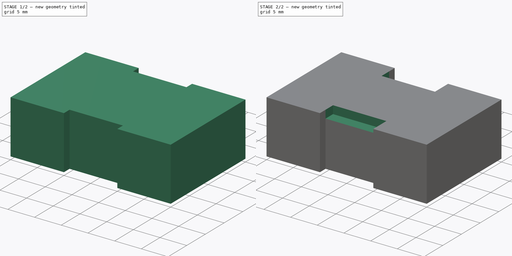
[diagram: build sequence overview — one tinted view per stage of 2, left to right]
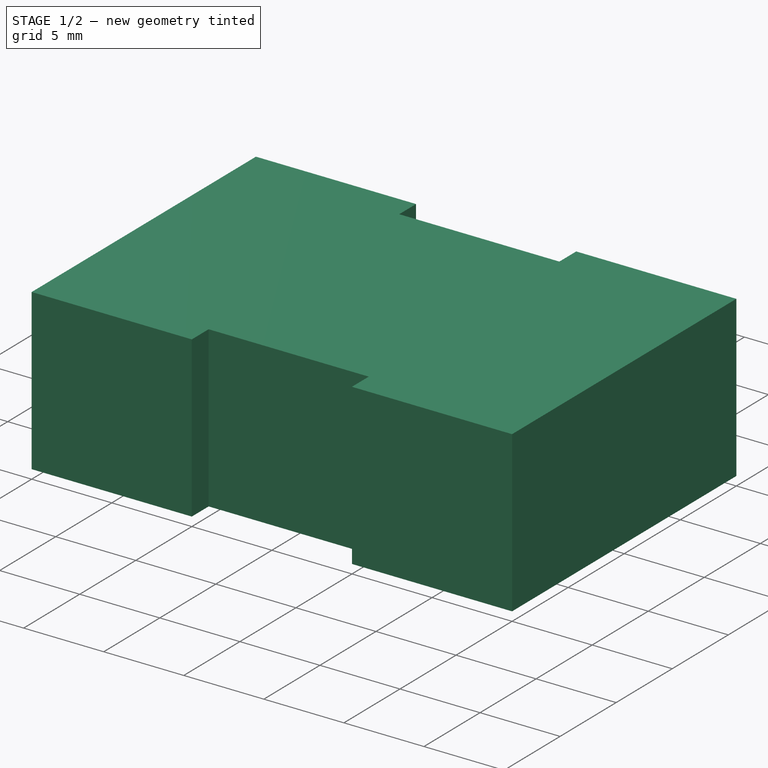
[diagram: stage 1 of 2 — iso view after this stage's code; geometry added in this stage tinted green]
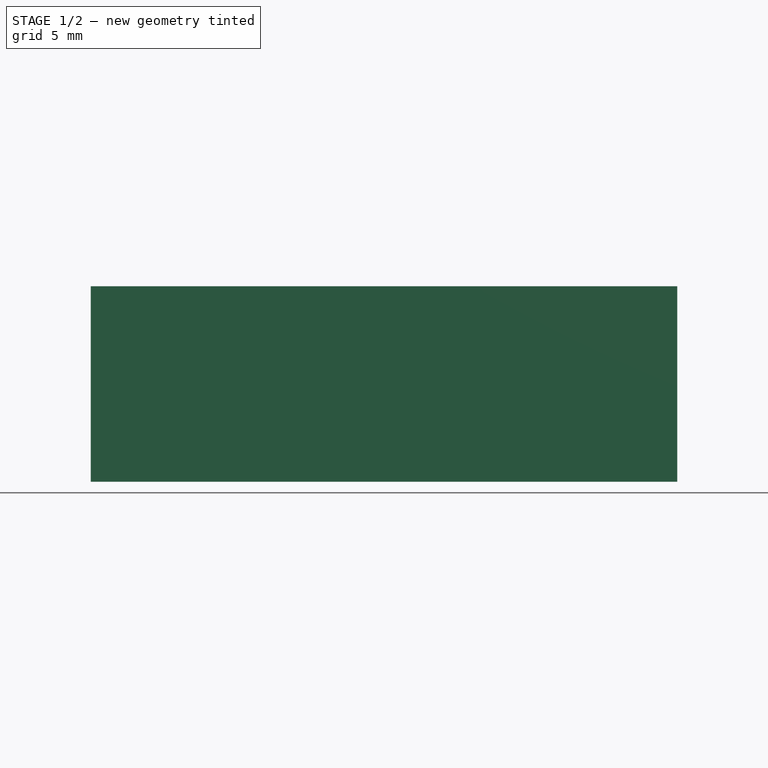
[diagram: stage 1 of 2 — front view after this stage's code; geometry added in this stage tinted green]
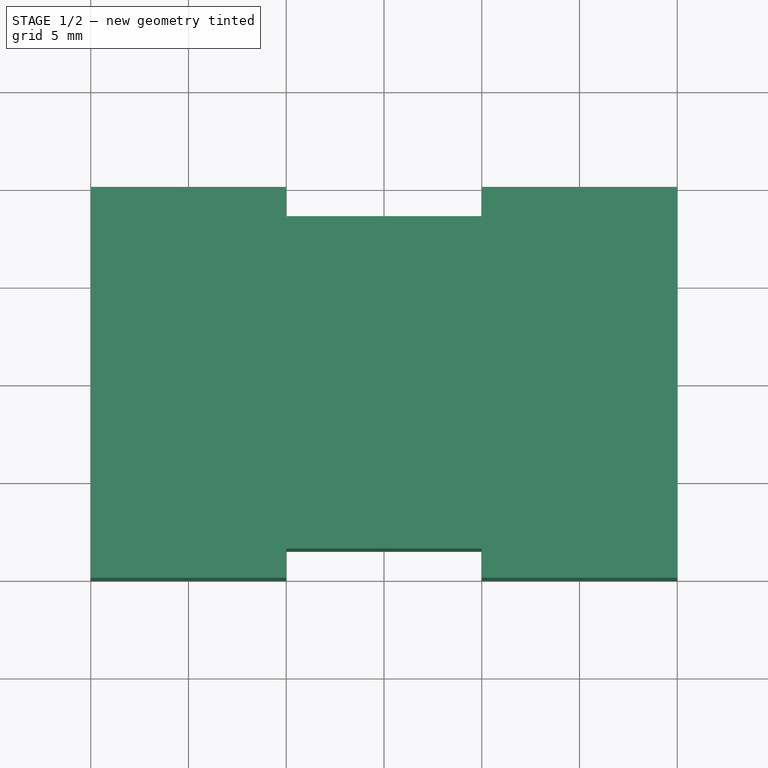
[diagram: stage 1 of 2 — top view after this stage's code; geometry added in this stage tinted green]
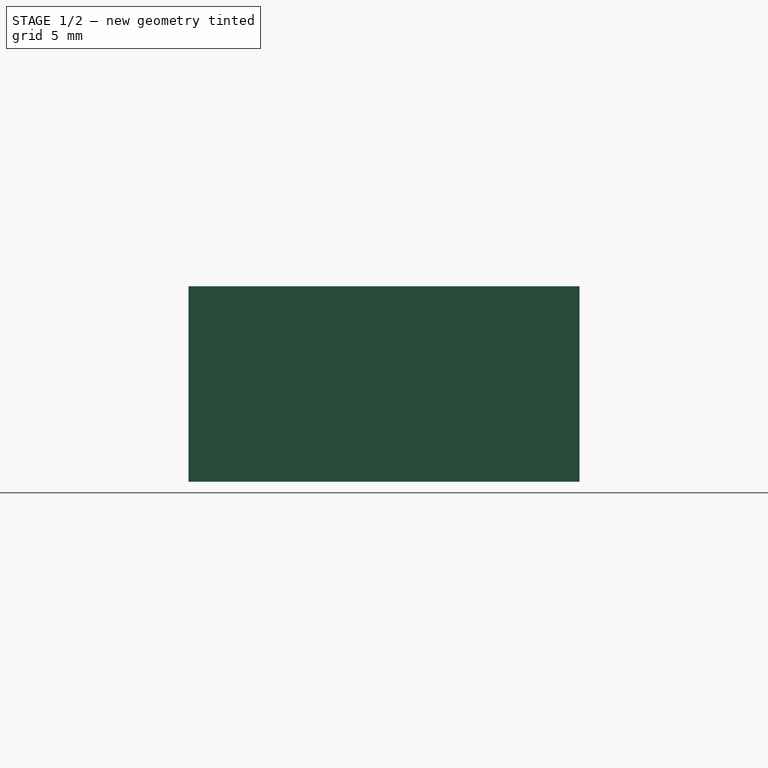
[diagram: stage 1 of 2 — right view after this stage's code; geometry added in this stage tinted green]
FCSTD DOCUMENT  (FreeCAD 0.21R33675 (Git))
Label: box
License: All rights reserved
LicenseURL: http://en.wikipedia.org/wiki/All_rights_reserved
objects: Sketcher::SketchObject×3, PartDesign::Pocket×2, PartDesign::Pad×1, PartDesign::Body×1
note: 10 computed .brp shape members not serialized (recipe doc carries the construction recipe); baked Part::Feature solids carry a one-line shape summary decoded from their .brp

FEATURE [Sketcher::SketchObject] Sketch  label="bottom-sk"
  FullyConstrained = true
  MapMode = 5
  Support = -> [XY_Plane]
  sketch-geometry (14):
    g0: LineSegment StartX=15 StartY=10 StartZ=0 EndX=15 EndY=-10 EndZ=0
    g1: LineSegment StartX=-15 StartY=-10 StartZ=0 EndX=-15 EndY=10 EndZ=0
    g2: GeomPoint X=-15 Y=0 Z=0
    g3: GeomPoint X=0 Y=10 Z=0
    g4: LineSegment StartX=-15 StartY=10 StartZ=0 EndX=-5 EndY=10 EndZ=0
    g5: LineSegment StartX=5 StartY=10 StartZ=0 EndX=15 EndY=10 EndZ=0
    g6: LineSegment StartX=-5 StartY=10 StartZ=0 EndX=-5 EndY=8.5 EndZ=0
    g7: LineSegment StartX=-5 StartY=8.5 StartZ=0 EndX=5 EndY=8.5 EndZ=0
    g8: LineSegment StartX=5 StartY=8.5 StartZ=0 EndX=5 EndY=10 EndZ=0
    g9: LineSegment StartX=-5 StartY=-10 StartZ=0 EndX=-15 EndY=-10 EndZ=0
    g10: LineSegment StartX=15 StartY=-10 StartZ=0 EndX=5 EndY=-10 EndZ=0
    g11: LineSegment StartX=-5 StartY=-10 StartZ=0 EndX=-5 EndY=-8.5 EndZ=0
    g12: LineSegment StartX=-5 StartY=-8.5 StartZ=0 EndX=5 EndY=-8.5 EndZ=0
    g13: LineSegment StartX=5 StartY=-8.5 StartZ=0 EndX=5 EndY=-10 EndZ=0
  constraints (34):
    c: Coincident(g5,g0)
    c: Coincident(g0,g10)
    c: Coincident(g9,g1)
    c: Coincident(g1,g4)
    c: Vertical(g0)
    c: Vertical(g1)
    c: PointOnObject(g3,g-2)
    c: Symmetric(g9,g4,g2)
    c: PointOnObject(g2,g-1)
    c: Symmetric(g4,g5,g3)
    c: DistanceX(g4,g5) = 30
    c: DistanceY(g1,g1) = 20
    c: Horizontal(g4)
    c: Coincident(g6,g4)
    c: Vertical(g6)
    c: Coincident(g7,g6)
    c: Horizontal(g7)
    c: Coincident(g8,g7)
    c: Vertical(g8)
    c: Coincident(g8,g5)
    c: DistanceX(g7,g7) = 10
    c: DistanceY(g8,g8) = 1.5
    c: Tangent(g4,g5)
    c: DistanceX(g4,g3) = 5
    c: Horizontal(g9)
    c: Coincident(g11,g9)
    c: Coincident(g12,g11)
    c: Horizontal(g12)
    c: Coincident(g13,g12)
    c: Coincident(g13,g10)
    c: Tangent(g11,g6)
    c: Tangent(g13,g8)
    c: Tangent(g9,g10)
    c: DistanceY(g13,g13) = 1.5
FEATURE [PartDesign::Pad] Pad  label="outer-body"
  Direction = (0,0,1)
  Length = 10
  Length2 = 10
  Profile = -> Sketch
  ReferenceAxis = -> Sketch [N_Axis]
  Type = 0
FEATURE [Sketcher::SketchObject] Sketch001  label="inner-sk"
  ExternalGeometry = -> [Pad]
  FullyConstrained = true
  MapMode = 5
  Placement = pos=(0,0,0) rot=(1,0,0;3.14159rad)
  Support = -> [Pad]
  sketch-geometry (4):
    g0: LineSegment StartX=-13 StartY=8 StartZ=0 EndX=13 EndY=8 EndZ=0
    g1: LineSegment StartX=13 StartY=8 StartZ=0 EndX=13 EndY=-8 EndZ=0
    g2: LineSegment StartX=13 StartY=-8 StartZ=0 EndX=-13 EndY=-8 EndZ=0
    g3: LineSegment StartX=-13 StartY=-8 StartZ=0 EndX=-13 EndY=8 EndZ=0
  constraints (12):
    c: Coincident(g0,g1)
    c: Coincident(g1,g2)
    c: Coincident(g2,g3)
    c: Coincident(g3,g0)
    c: Horizontal(g0)
    c: Horizontal(g2)
    c: Vertical(g1)
    c: Vertical(g3)
    c: DistanceX(g-3,g0) = 2
    c: DistanceY(g0,g-3) = 2
    c: DistanceY(g-3,g2) = 2
    c: DistanceX(g0,g-4) = 2
FEATURE [PartDesign::Pocket] Pocket  label="inner-poket"
  BaseFeature = -> Pad
  Direction = (0,0,1)
  Length = 8
  Length2 = 5
  Profile = -> Sketch001
  ReferenceAxis = -> Sketch001 [N_Axis]
  Type = 0
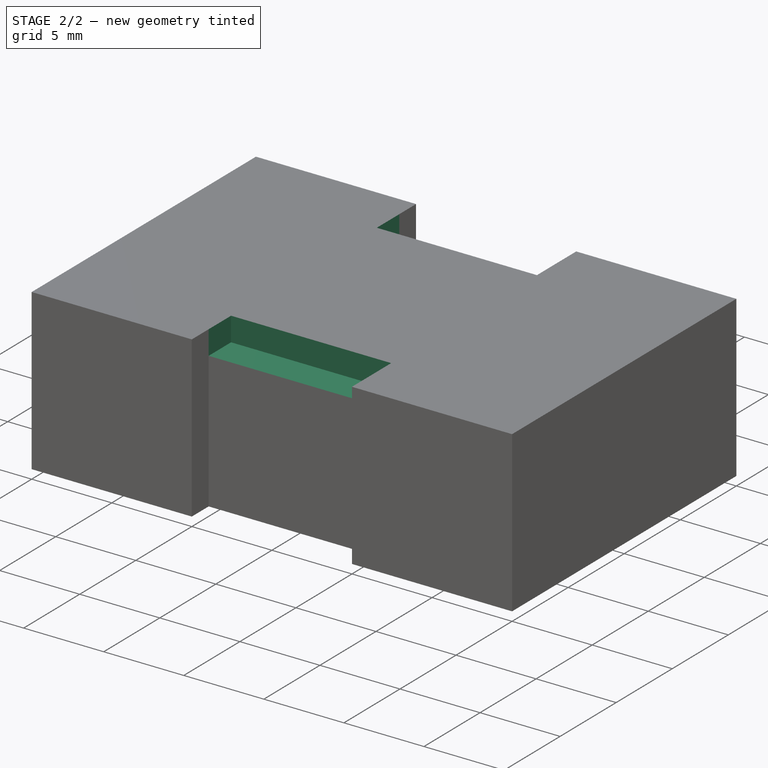
[diagram: stage 2 of 2 — iso view after this stage's code; geometry added in this stage tinted green]
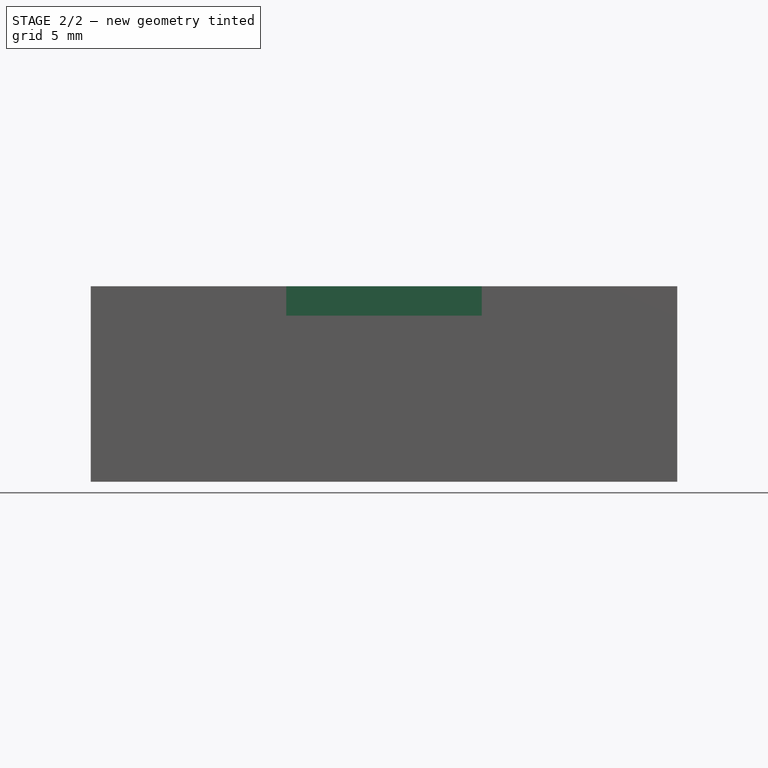
[diagram: stage 2 of 2 — front view after this stage's code; geometry added in this stage tinted green]
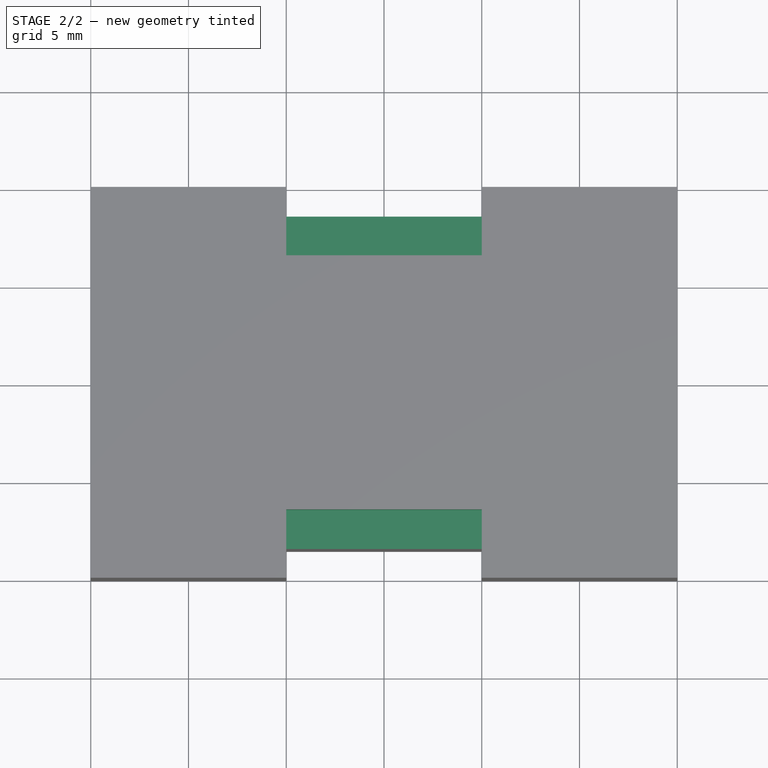
[diagram: stage 2 of 2 — top view after this stage's code; geometry added in this stage tinted green]
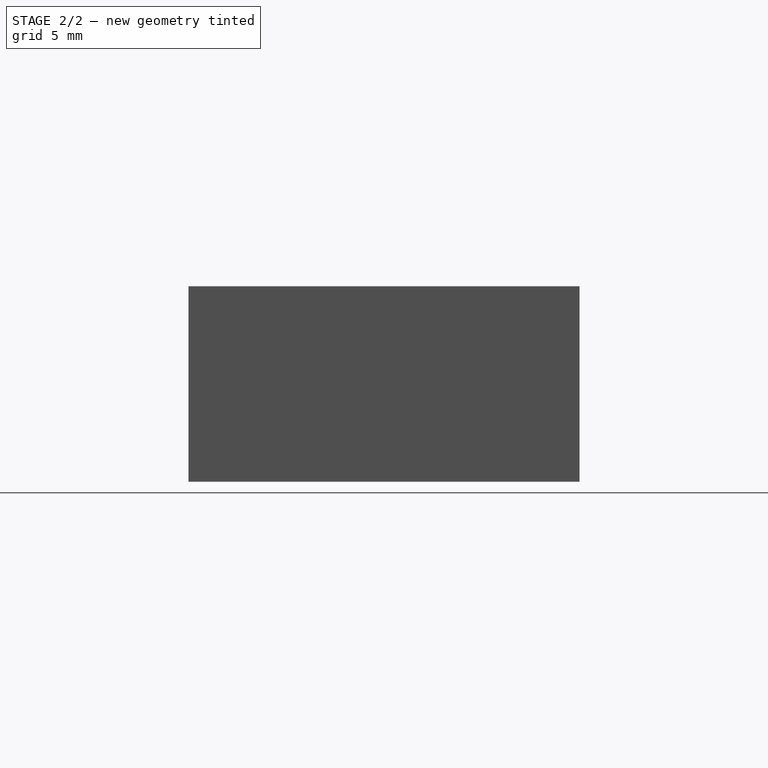
[diagram: stage 2 of 2 — right view after this stage's code; geometry added in this stage tinted green]
FEATURE [Sketcher::SketchObject] Sketch002  label="hook-sk"
  ExternalGeometry = -> [Pocket]
  FullyConstrained = true
  MapMode = 5
  Placement = pos=(0,0,10) rot=(0,0,1;0rad)
  Support = -> [Pocket]
  sketch-geometry (8):
    g0: LineSegment StartX=-5 StartY=8.5 StartZ=0 EndX=5 EndY=8.5 EndZ=0
    g1: LineSegment StartX=5 StartY=8.5 StartZ=0 EndX=5 EndY=6.5 EndZ=0
    g2: LineSegment StartX=5 StartY=6.5 StartZ=0 EndX=-5 EndY=6.5 EndZ=0
    g3: LineSegment StartX=-5 StartY=6.5 StartZ=0 EndX=-5 EndY=8.5 EndZ=0
    g4: LineSegment StartX=-5 StartY=-8.5 StartZ=0 EndX=5 EndY=-8.5 EndZ=0
    g5: LineSegment StartX=5 StartY=-8.5 StartZ=0 EndX=5 EndY=-6.5 EndZ=0
    g6: LineSegment StartX=5 StartY=-6.5 StartZ=0 EndX=-5 EndY=-6.5 EndZ=0
    g7: LineSegment StartX=-5 StartY=-6.5 StartZ=0 EndX=-5 EndY=-8.5 EndZ=0
  constraints (20):
    c: Coincident(g0,g1)
    c: Coincident(g1,g2)
    c: Coincident(g2,g3)
    c: Coincident(g3,g0)
    c: Horizontal(g2)
    c: Vertical(g1)
    c: Vertical(g3)
    c: Coincident(g0,g-3)
    c: Coincident(g4,g5)
    c: Coincident(g5,g6)
    c: Coincident(g6,g7)
    c: Coincident(g7,g4)
    c: Horizontal(g6)
    c: Vertical(g5)
    c: Vertical(g7)
    c: Coincident(g4,g-4)
    c: Coincident(g4,g-4)
    c: Coincident(g0,g-3)
    c: DistanceY(g3,g3) = 2
    c: DistanceY(g7,g7) = 2
FEATURE [PartDesign::Pocket] Pocket001
  BaseFeature = -> Pocket
  Direction = (0,0,-1)
  Length = 1.5
  Length2 = 5
  Profile = -> Sketch002
  ReferenceAxis = -> Sketch002 [N_Axis]
  Type = 0
FEATURE [PartDesign::Body] Body  label="box"
  Group = -> [Sketch,Pad,Sketch001,Pocket,Sketch002,Pocket001]
  Origin = -> Origin
  Tip = -> Pocket001
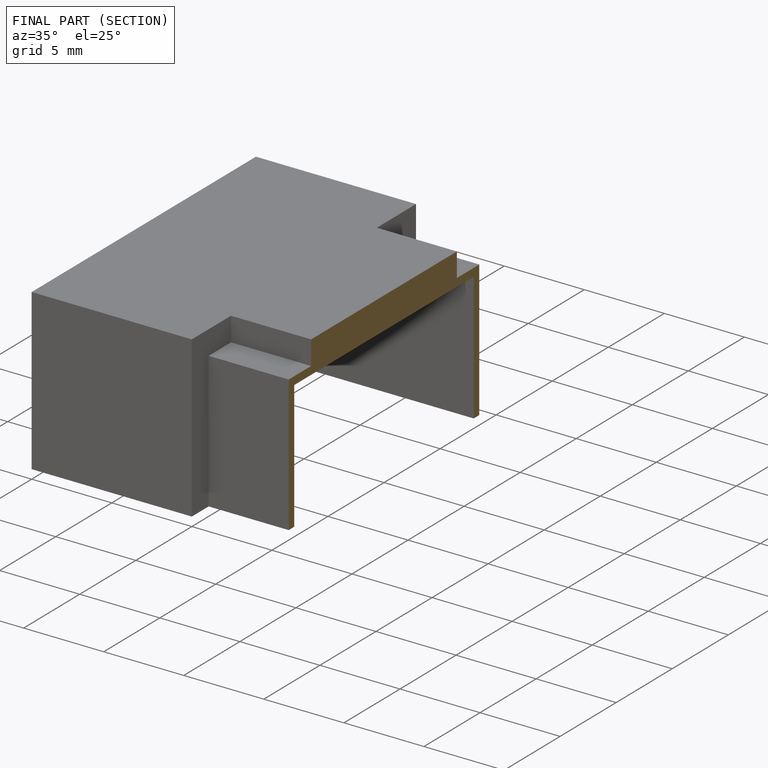
[diagram: finished part — half-section view (interior)]
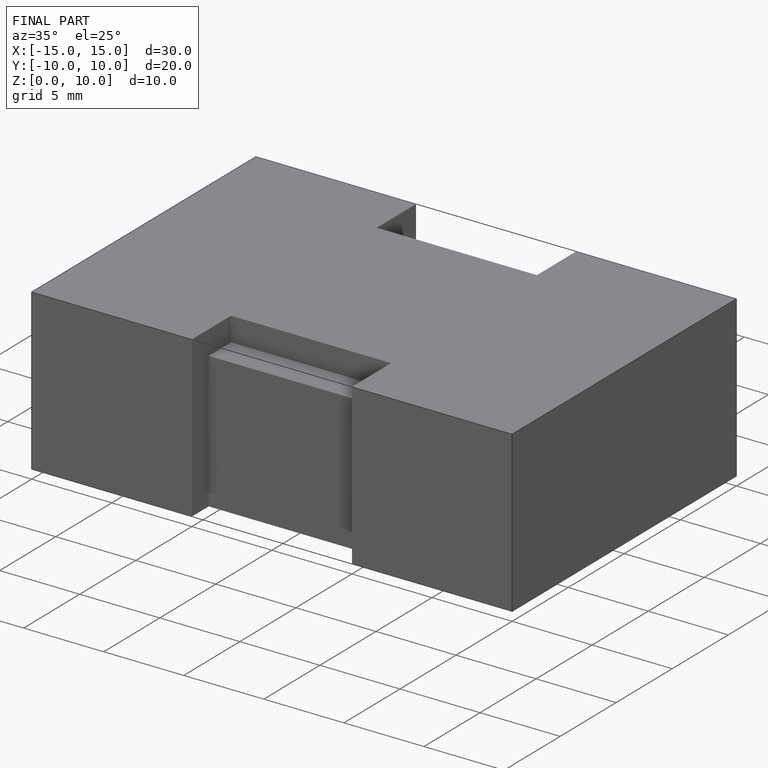
[diagram: finished part — iso view with bounding-box wireframe]
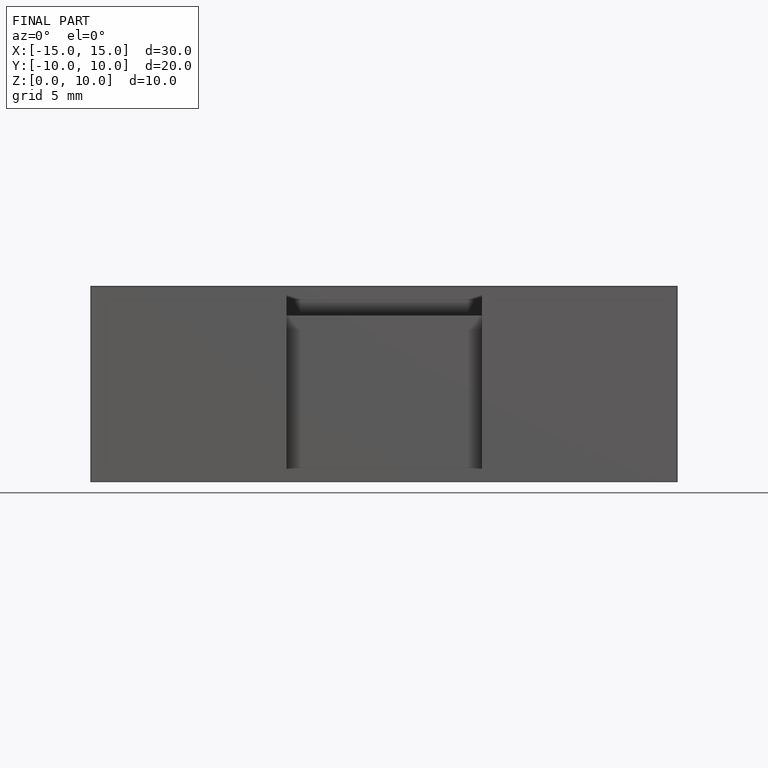
[diagram: finished part — front view with bounding-box wireframe]
